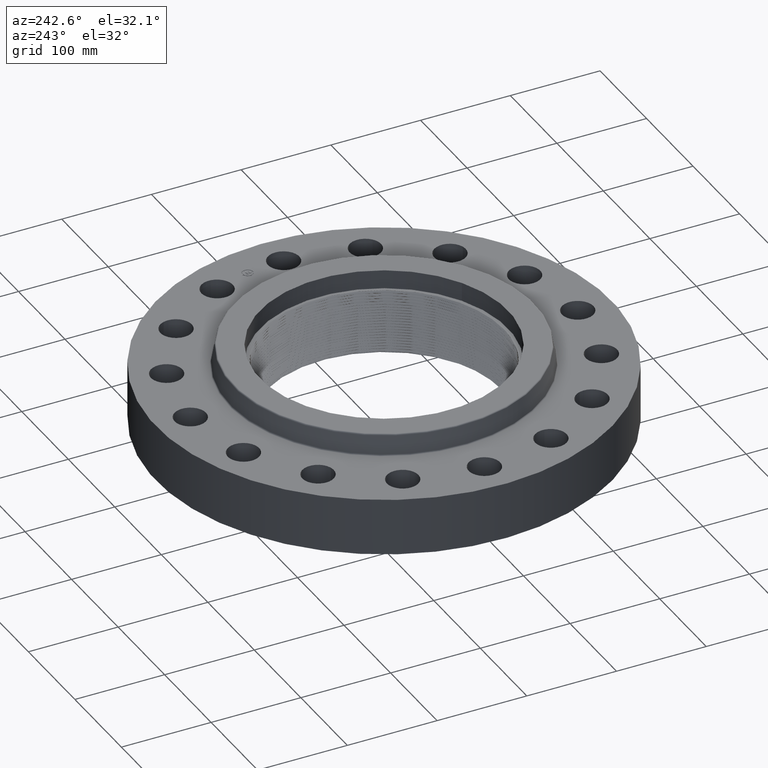
[diagram: clean part render]
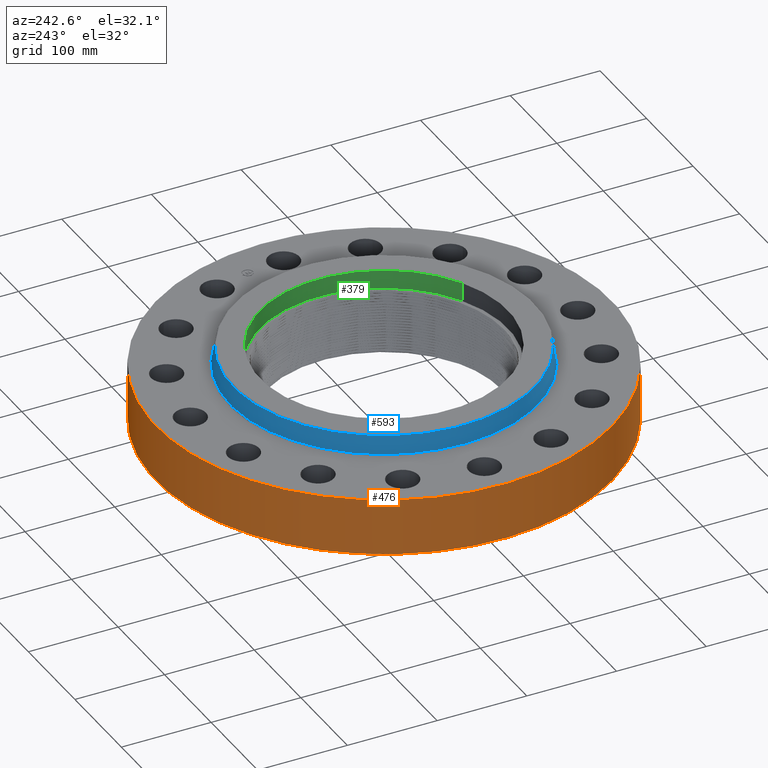
[diagram: same view with three faces highlighted in distinct colors, each labeled with its STEP entity id]
A machine part, auxiliary view with three faces highlighted in distinct colors.
Their STEP definitions:

[orange] entity #476 — the highlighted cylindrical surface (partial cylindrical patch) has radius 254 mm, axis along (0, 0, -1).
#440=AXIS2_PLACEMENT_3D('Cylinder Axis2P3D',#437,#438,#439) ;
#444=AXIS2_PLACEMENT_3D('Circle Axis2P3D',#442,#443,$) ;
#460=AXIS2_PLACEMENT_3D('Circle Axis2P3D',#458,#459,$) ;
#437=CARTESIAN_POINT('Axis2P3D Location',(0.,0.,1.56500000001)) ;
#442=CARTESIAN_POINT('Axis2P3D Location',(0.,0.,1.1189649382E-015)) ;
#446=CARTESIAN_POINT('Vertex',(-4.79425538606,-8.77582561894,1.1189649382E-015)) ;
#448=CARTESIAN_POINT('Vertex',(4.79425538606,8.77582561894,1.1189649382E-015)) ;
#451=CARTESIAN_POINT('Line Origine',(-4.79425538606,-8.77582561894,1.25000000001)) ;
#455=CARTESIAN_POINT('Vertex',(-4.79425538606,-8.77582561894,2.50000000001)) ;
#458=CARTESIAN_POINT('Axis2P3D Location',(0.,0.,2.50000000001)) ;
#462=CARTESIAN_POINT('Vertex',(4.79425538606,8.77582561894,2.50000000001)) ;
#465=CARTESIAN_POINT('Line Origine',(4.79425538606,8.77582561894,1.25000000001)) ;
#438=DIRECTION('Axis2P3D Direction',(0.,0.,-0.0393700787402)) ;
#439=DIRECTION('Axis2P3D XDirection',(0.0188750212049,0.0345504945626,0.)) ;
#443=DIRECTION('Axis2P3D Direction',(0.,0.,-0.0393700787402)) ;
#452=DIRECTION('Vector Direction',(0.,0.,-0.0393700787402)) ;
#459=DIRECTION('Axis2P3D Direction',(0.,0.,-0.0393700787402)) ;
#466=DIRECTION('Vector Direction',(0.,0.,-0.0393700787402)) ;
#453=VECTOR('Line Direction',#452,0.0393700787402) ;
#467=VECTOR('Line Direction',#466,0.0393700787402) ;
#471=ORIENTED_EDGE('',*,*,#450,.F.) ;
#472=ORIENTED_EDGE('',*,*,#457,.T.) ;
#473=ORIENTED_EDGE('',*,*,#464,.T.) ;
#474=ORIENTED_EDGE('',*,*,#469,.F.) ;
#476=ADVANCED_FACE('PartBody',(#475),#441,.T.) ;
#445=CIRCLE('generated circle',#444,10.) ;
#461=CIRCLE('generated circle',#460,10.) ;
#441=CYLINDRICAL_SURFACE('generated cylinder',#440,10.) ;
#450=EDGE_CURVE('',#447,#449,#445,.T.) ;
#457=EDGE_CURVE('',#447,#456,#454,.F.) ;
#464=EDGE_CURVE('',#456,#463,#461,.T.) ;
#469=EDGE_CURVE('',#449,#463,#468,.F.) ;
#470=EDGE_LOOP('',(#471,#472,#473,#474)) ;
#475=FACE_OUTER_BOUND('',#470,.T.) ;
#454=LINE('Line',#451,#453) ;
#468=LINE('Line',#465,#467) ;
#447=VERTEX_POINT('',#446) ;
#449=VERTEX_POINT('',#448) ;
#456=VERTEX_POINT('',#455) ;
#463=VERTEX_POINT('',#462) ;

[blue] entity #593 — the highlighted conical surface has half-angle 10 deg.
#541=AXIS2_PLACEMENT_3D('Circle Axis2P3D',#539,#540,$) ;
#554=AXIS2_PLACEMENT_3D('Cone Axis2P3D',#551,#552,#553) ;
#584=AXIS2_PLACEMENT_3D('Circle Axis2P3D',#582,#583,$) ;
#512=CARTESIAN_POINT('Vertex',(3.2319310139,5.91601003837,2.54958110935)) ;
#519=CARTESIAN_POINT('Vertex',(-3.2319310139,-5.91601003837,2.54958110935)) ;
#539=CARTESIAN_POINT('Axis2P3D Location',(0.,0.,2.54958110935)) ;
#551=CARTESIAN_POINT('Axis2P3D Location',(0.,0.,3.33041889067)) ;
#556=CARTESIAN_POINT('Line Origine',(3.1989266962,5.85559604006,2.94000000001)) ;
#560=CARTESIAN_POINT('Vertex',(3.16592237851,5.79518204175,3.33041889067)) ;
#567=CARTESIAN_POINT('Vertex',(-3.16592237851,-5.79518204175,3.33041889067)) ;
#570=CARTESIAN_POINT('Line Origine',(-3.1989266962,-5.85559604006,2.94000000001)) ;
#582=CARTESIAN_POINT('Axis2P3D Location',(0.,0.,3.33041889067)) ;
#540=DIRECTION('Axis2P3D Direction',(0.,0.,-0.0393700787402)) ;
#552=DIRECTION('Axis2P3D Direction',(0.,0.,-0.0393700787402)) ;
#553=DIRECTION('Axis2P3D XDirection',(-0.0188750212049,-0.0345504945626,0.)) ;
#557=DIRECTION('Vector Direction',(0.00327761303565,0.00599963041829,-0.03877195878)) ;
#571=DIRECTION('Vector Direction',(-0.00327761303565,-0.00599963041829,-0.03877195878)) ;
#583=DIRECTION('Axis2P3D Direction',(0.,0.,-0.0393700787402)) ;
#558=VECTOR('Line Direction',#557,0.0393700787402) ;
#572=VECTOR('Line Direction',#571,0.0393700787402) ;
#588=ORIENTED_EDGE('',*,*,#543,.F.) ;
#589=ORIENTED_EDGE('',*,*,#574,.T.) ;
#590=ORIENTED_EDGE('',*,*,#586,.T.) ;
#591=ORIENTED_EDGE('',*,*,#562,.F.) ;
#593=ADVANCED_FACE('PartBody',(#592),#555,.T.) ;
#542=CIRCLE('generated circle',#541,6.74125751272) ;
#585=CIRCLE('generated circle',#584,6.60357474431) ;
#555=CONICAL_SURFACE('Cone',#554,6.60357474431,0.174532925199) ;
#543=EDGE_CURVE('',#520,#513,#542,.T.) ;
#562=EDGE_CURVE('',#513,#561,#559,.F.) ;
#574=EDGE_CURVE('',#520,#568,#573,.F.) ;
#586=EDGE_CURVE('',#568,#561,#585,.T.) ;
#587=EDGE_LOOP('',(#588,#589,#590,#591)) ;
#592=FACE_OUTER_BOUND('',#587,.T.) ;
#559=LINE('Line',#556,#558) ;
#573=LINE('Line',#570,#572) ;
#513=VERTEX_POINT('',#512) ;
#520=VERTEX_POINT('',#519) ;
#561=VERTEX_POINT('',#560) ;
#568=VERTEX_POINT('',#567) ;

[green] entity #379 — the highlighted cylindrical surface (partial cylindrical patch) has radius 138.176 mm, axis along (0, 0, 1).
#51=AXIS2_PLACEMENT_3D('Circle Axis2P3D',#49,#50,$) ;
#340=AXIS2_PLACEMENT_3D('Cylinder Axis2P3D',#337,#338,#339) ;
#370=AXIS2_PLACEMENT_3D('Circle Axis2P3D',#368,#369,$) ;
#44=CARTESIAN_POINT('Vertex',(-2.60807493002,4.7740491367,2.56000000001)) ;
#46=CARTESIAN_POINT('Vertex',(2.60807493002,-4.7740491367,2.56000000001)) ;
#49=CARTESIAN_POINT('Axis2P3D Location',(0.,0.,2.56000000001)) ;
#337=CARTESIAN_POINT('Axis2P3D Location',(0.,0.,2.56000000001)) ;
#346=CARTESIAN_POINT('Vertex',(2.60807493002,-4.7740491367,3.38000000001)) ;
#348=CARTESIAN_POINT('Vertex',(-2.60807493002,4.7740491367,3.38000000001)) ;
#351=CARTESIAN_POINT('Line Origine',(2.60807493002,-4.7740491367,2.97000000001)) ;
#356=CARTESIAN_POINT('Line Origine',(-2.60807493002,4.7740491367,2.97000000001)) ;
#368=CARTESIAN_POINT('Axis2P3D Location',(0.,0.,3.38000000001)) ;
#50=DIRECTION('Axis2P3D Direction',(0.,0.,-0.0393700787402)) ;
#338=DIRECTION('Axis2P3D Direction',(0.,0.,0.0393700787402)) ;
#339=DIRECTION('Axis2P3D XDirection',(0.0188750212049,-0.0345504945626,0.)) ;
#352=DIRECTION('Vector Direction',(0.,0.,0.0393700787402)) ;
#357=DIRECTION('Vector Direction',(0.,0.,0.0393700787402)) ;
#369=DIRECTION('Axis2P3D Direction',(0.,0.,0.0393700787402)) ;
#353=VECTOR('Line Direction',#352,0.0393700787402) ;
#358=VECTOR('Line Direction',#357,0.0393700787402) ;
#374=ORIENTED_EDGE('',*,*,#372,.F.) ;
#375=ORIENTED_EDGE('',*,*,#360,.F.) ;
#376=ORIENTED_EDGE('',*,*,#53,.F.) ;
#377=ORIENTED_EDGE('',*,*,#355,.T.) ;
#379=ADVANCED_FACE('PartBody',(#378),#341,.F.) ;
#52=CIRCLE('generated circle',#51,5.44000000002) ;
#371=CIRCLE('generated circle',#370,5.44000000002) ;
#341=CYLINDRICAL_SURFACE('generated cylinder',#340,5.44000000002) ;
#53=EDGE_CURVE('',#47,#45,#52,.F.) ;
#355=EDGE_CURVE('',#47,#347,#354,.T.) ;
#360=EDGE_CURVE('',#45,#349,#359,.T.) ;
#372=EDGE_CURVE('',#349,#347,#371,.F.) ;
#373=EDGE_LOOP('',(#374,#375,#376,#377)) ;
#378=FACE_OUTER_BOUND('',#373,.T.) ;
#354=LINE('Line',#351,#353) ;
#359=LINE('Line',#356,#358) ;
#45=VERTEX_POINT('',#44) ;
#47=VERTEX_POINT('',#46) ;
#347=VERTEX_POINT('',#346) ;
#349=VERTEX_POINT('',#348) ;